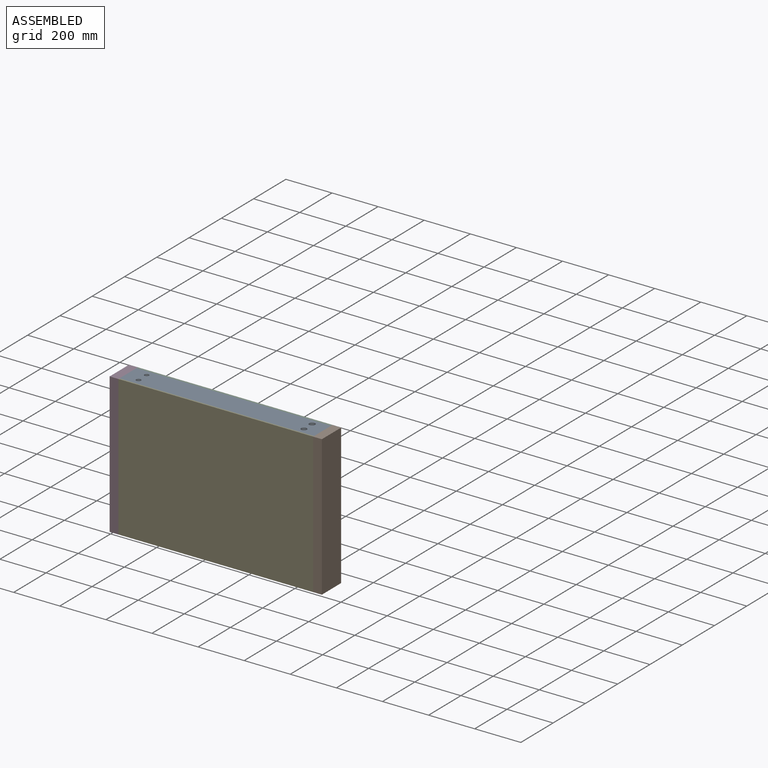
[diagram: assembled view]
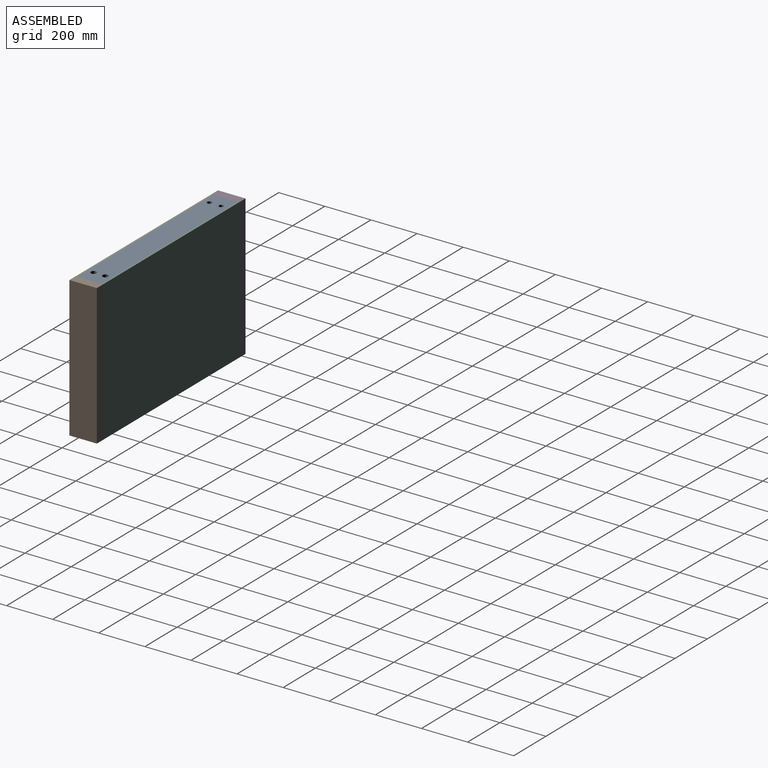
[diagram: assembled view, second angle]
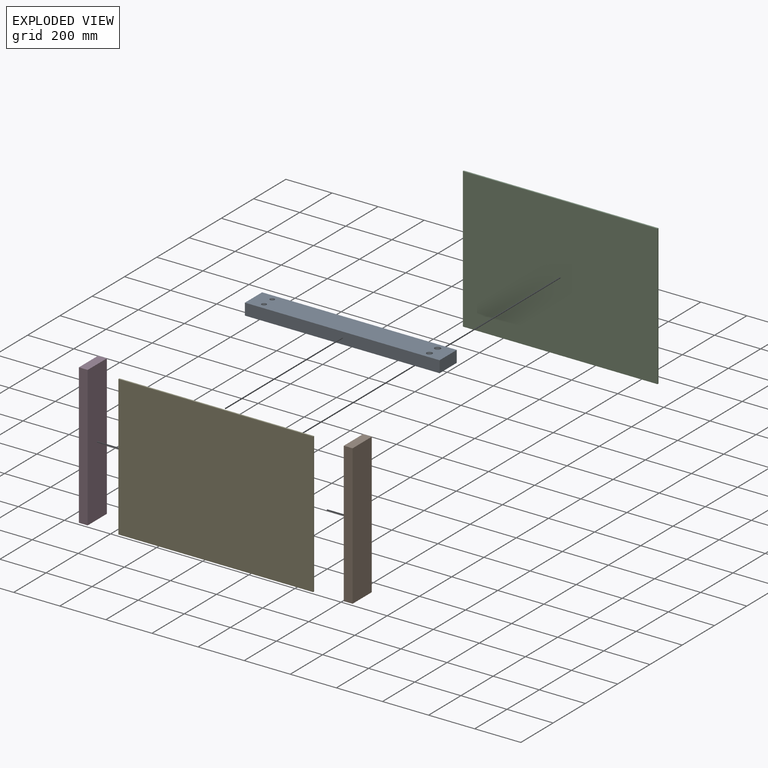
[diagram: exploded view]
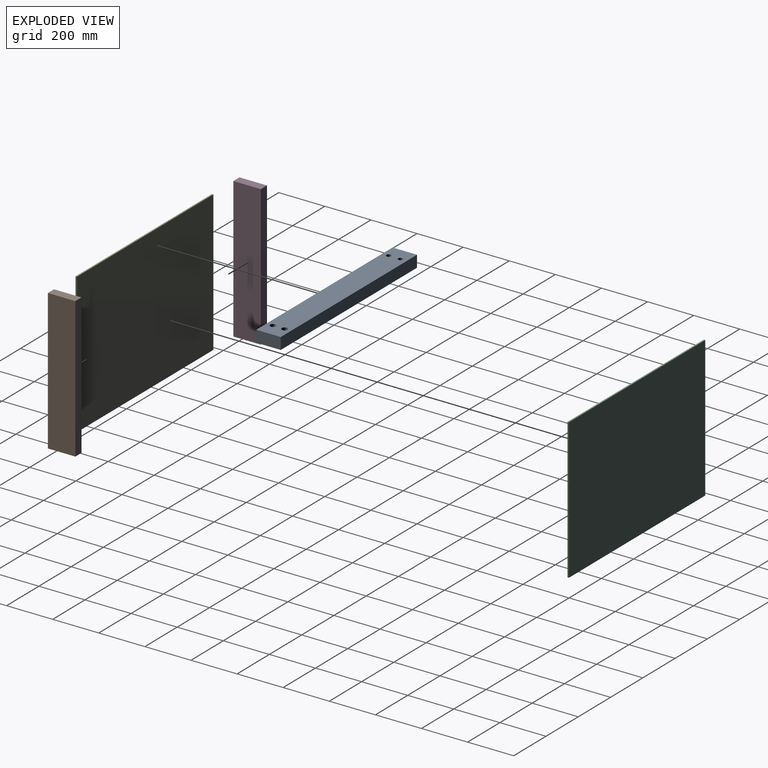
[diagram: exploded view, second angle]
ASSEMBLY  parts=5 mates=4
PART A: 10 faces, bbox 844.6x106.4x50.8 mm
  f0: plane 844.55x50.8mm, normal (0,1,0), area 42903.1mm2, adj f1,f7,f8,f9
  f1: plane 106.36x50.8mm, normal (-1,0,0), area 5403.2mm2, adj f0,f2,f8,f9
  f2: plane 844.55x50.8mm, normal (0,-1,0), area 42903.1mm2, adj f1,f7,f8,f9
  f3: cylinder r=9.77mm len=50.8mm, axis (0,0,-1), area 3119mm2, adj f8,f9
  f4: cylinder r=10.34mm len=50.8mm, axis (0,0,-1), area 3300.4mm2, adj f8,f9
  f5: cylinder r=12.85mm len=50.8mm, axis (0,0,-1), area 4103mm2, adj f8,f9
  f6: cylinder r=12.26mm len=50.8mm, axis (0,0,-1), area 3911.9mm2, adj f8,f9
  f7: plane 106.36x50.8mm, normal (1,0,0), area 5403.2mm2, adj f0,f2,f8,f9
  f8: plane 844.55x106.36mm, normal (0,0,1), area 88201.6mm2, adj f0,f1,f2,f3,f4,f5,f6,f7
  f9: plane 844.55x106.36mm, normal (0,0,-1), area 88201.6mm2, adj f0,f1,f2,f3,f4,f5,f6,f7
PART B: 6 faces, bbox 38.1x119.1x609.6 mm
  f0: plane 119.06x38.1mm, normal (0,0,1), area 4536.3mm2, adj f1,f3,f4,f5
  f1: plane 609.6x119.06mm, normal (-1,0,0), area 72580.5mm2, adj f0,f2,f4,f5
  f2: plane 119.06x38.1mm, normal (0,0,-1), area 4536.3mm2, adj f1,f3,f4,f5
  f3: plane 609.6x119.06mm, normal (1,0,0), area 72580.5mm2, adj f0,f2,f4,f5
  f4: plane 609.6x38.1mm, normal (0,-1,0), area 23225.8mm2, adj f0,f1,f2,f3
  f5: plane 609.6x38.1mm, normal (0,1,0), area 23225.8mm2, adj f0,f1,f2,f3
PART C: 6 faces, bbox 844.6x6.4x609.6 mm
  f0: plane 844.55x6.35mm, normal (0,0,1), area 5362.9mm2, adj f1,f3,f4,f5
  f1: plane 609.6x6.35mm, normal (-1,0,0), area 3871mm2, adj f0,f2,f4,f5
  f2: plane 844.55x6.35mm, normal (0,0,-1), area 5362.9mm2, adj f1,f3,f4,f5
  f3: plane 609.6x6.35mm, normal (1,0,0), area 3871mm2, adj f0,f2,f4,f5
  f4: plane 844.55x609.6mm, normal (0,-1,0), area 514837.7mm2, adj f0,f1,f2,f3
  f5: plane 844.55x609.6mm, normal (0,1,0), area 514837.7mm2, adj f0,f1,f2,f3
PART D: same geometry as B
PART E: same geometry as C
PLACE A t=(-153.66,-10.94,466.94)mm
PLACE B t=(690.89,101.77,-91.86)mm
PLACE C t=(-153.66,101.77,-91.86)mm
PLACE D t=(-191.76,101.77,-91.86)mm
PLACE E t=(-153.66,-10.94,-91.86)mm
MATE planar E.f5 <-> A.f2  axis (0,1,0) through (268.61,-10.94,212.94)mm
MATE planar B.f1 <-> A.f7  axis (-1,0,0) through (690.89,42.24,212.94)mm
MATE planar C.f4 <-> A.f0  axis (0,-1,0) through (268.61,95.42,212.94)mm
MATE planar A.f1 <-> D.f3  axis (-1,0,0) through (-153.66,42.24,492.34)mm
